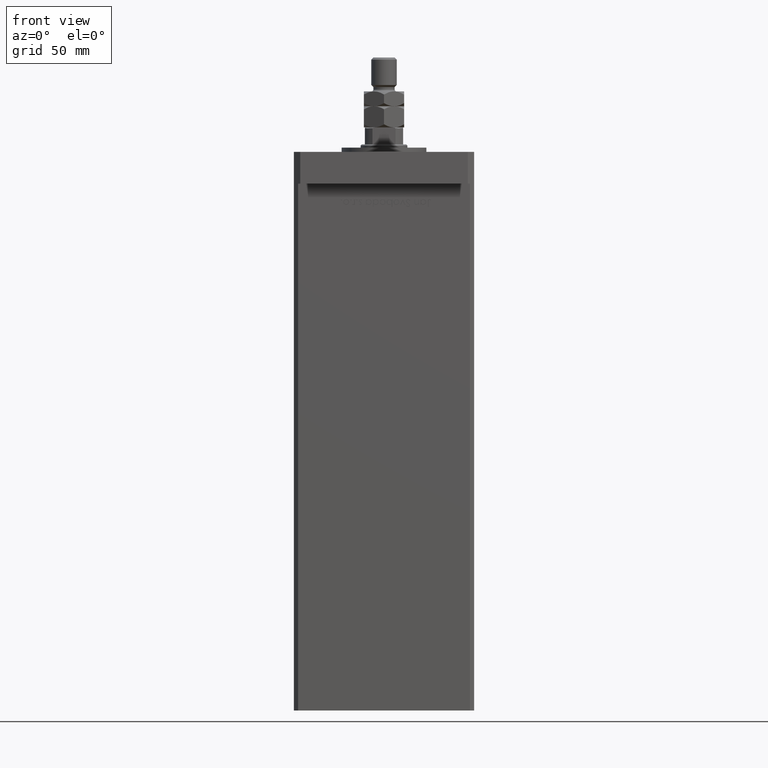
[diagram: clean part render]
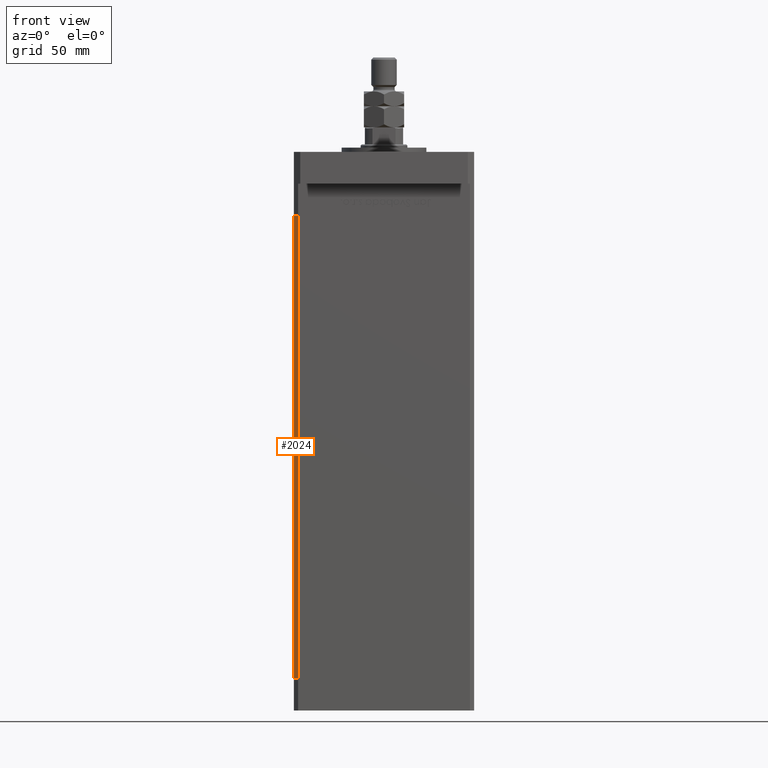
[diagram: same view with one face highlighted and labeled with its STEP entity id]
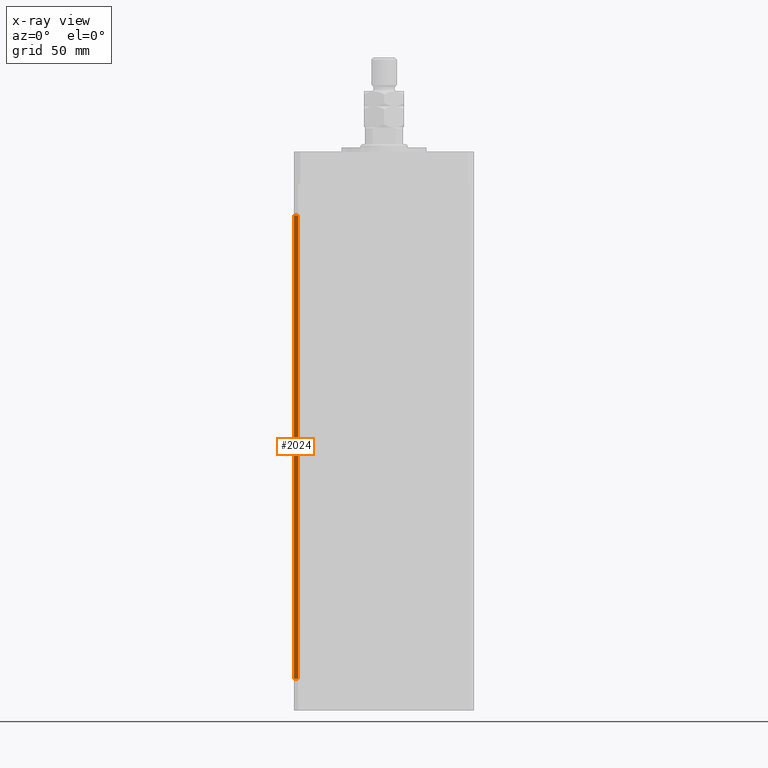
[diagram: x-ray of the same camera — body ghosted, the highlighted face saturated]
A machine part, front view. The second image highlights one B-rep face of the part: STEP entity #2024.
The next image is the same camera in x-ray: the body ghosted, the highlighted face saturated — about 0% of this face is hidden behind the body in this view.
In plain terms, the highlighted planar face has unit normal (0.7071, 0.7071, 0).
Its self-contained STEP definition (entity closure, byte-faithful):
#2024 = ADVANCED_FACE ( 'NONE', ( #21967 ), #30045, .F. ) ;
#2104 = VERTEX_POINT ( 'NONE', #45072 ) ;
#7901 = CARTESIAN_POINT ( 'NONE',  ( -42.49999999999998579, -35.50000000000000711, 218.5000000000000000 ) ) ;
#9787 = AXIS2_PLACEMENT_3D ( 'NONE', #52346, #21417, #30322 ) ;
#10541 = ORIENTED_EDGE ( 'NONE', *, *, #19098, .T. ) ;
#10655 = VECTOR ( 'NONE', #14088, 1000.000000000000000 ) ;
#11856 = ORIENTED_EDGE ( 'NONE', *, *, #33755, .F. ) ;
#12362 = DIRECTION ( 'NONE',  ( 0.7071067811865474617, -0.7071067811865474617, 0.000000000000000000 ) ) ;
#13955 = CARTESIAN_POINT ( 'NONE',  ( -42.49999999999998579, -35.50000000000000711, 218.5000000000000000 ) ) ;
#14088 = DIRECTION ( 'NONE',  ( -0.000000000000000000, -0.000000000000000000, -1.000000000000000000 ) ) ;
#16313 = VERTEX_POINT ( 'NONE', #30033 ) ;
#16376 = VECTOR ( 'NONE', #12362, 1000.000000000000114 ) ;
#17186 = EDGE_CURVE ( 'NONE', #22104, #16313, #18062, .T. ) ;
#18062 = LINE ( 'NONE', #51808, #44449 ) ;
#19098 = EDGE_CURVE ( 'NONE', #38922, #22104, #31371, .T. ) ;
#20448 = LINE ( 'NONE', #37441, #40913 ) ;
#21035 = EDGE_CURVE ( 'NONE', #2104, #16313, #20448, .T. ) ;
#21417 = DIRECTION ( 'NONE',  ( 0.7071067811865475727, 0.7071067811865475727, -0.000000000000000000 ) ) ;
#21967 = FACE_OUTER_BOUND ( 'NONE', #43322, .T. ) ;
#22104 = VERTEX_POINT ( 'NONE', #38391 ) ;
#25210 = LINE ( 'NONE', #7901, #16376 ) ;
#27791 = ORIENTED_EDGE ( 'NONE', *, *, #21035, .F. ) ;
#30033 = CARTESIAN_POINT ( 'NONE',  ( -40.49999999999998579, -37.50000000000000711, 0.000000000000000000 ) ) ;
#30045 = PLANE ( 'NONE',  #9787 ) ;
#30322 = DIRECTION ( 'NONE',  ( -0.7071067811865474617, 0.7071067811865474617, 0.000000000000000000 ) ) ;
#30865 = DIRECTION ( 'NONE',  ( 0.7071067811865474617, -0.7071067811865474617, 0.000000000000000000 ) ) ;
#31371 = LINE ( 'NONE', #31642, #10655 ) ;
#31642 = CARTESIAN_POINT ( 'NONE',  ( -42.49999999999998579, -35.50000000000000711, 218.5000000000000000 ) ) ;
#33755 = EDGE_CURVE ( 'NONE', #38922, #2104, #25210, .T. ) ;
#37441 = CARTESIAN_POINT ( 'NONE',  ( -40.49999999999998579, -37.50000000000000711, 218.5000000000000000 ) ) ;
#38391 = CARTESIAN_POINT ( 'NONE',  ( -42.49999999999998579, -35.50000000000000711, 0.000000000000000000 ) ) ;
#38922 = VERTEX_POINT ( 'NONE', #13955 ) ;
#40913 = VECTOR ( 'NONE', #46619, 1000.000000000000000 ) ;
#43322 = EDGE_LOOP ( 'NONE', ( #49841, #27791, #11856, #10541 ) ) ;
#44449 = VECTOR ( 'NONE', #30865, 1000.000000000000114 ) ;
#45072 = CARTESIAN_POINT ( 'NONE',  ( -40.49999999999998579, -37.50000000000000711, 218.5000000000000000 ) ) ;
#46619 = DIRECTION ( 'NONE',  ( -0.000000000000000000, -0.000000000000000000, -1.000000000000000000 ) ) ;
#49841 = ORIENTED_EDGE ( 'NONE', *, *, #17186, .T. ) ;
#51808 = CARTESIAN_POINT ( 'NONE',  ( -42.49999999999998579, -35.50000000000000711, 0.000000000000000000 ) ) ;
#52346 = CARTESIAN_POINT ( 'NONE',  ( -42.49999999999998579, -35.50000000000000711, 218.5000000000000000 ) ) ;